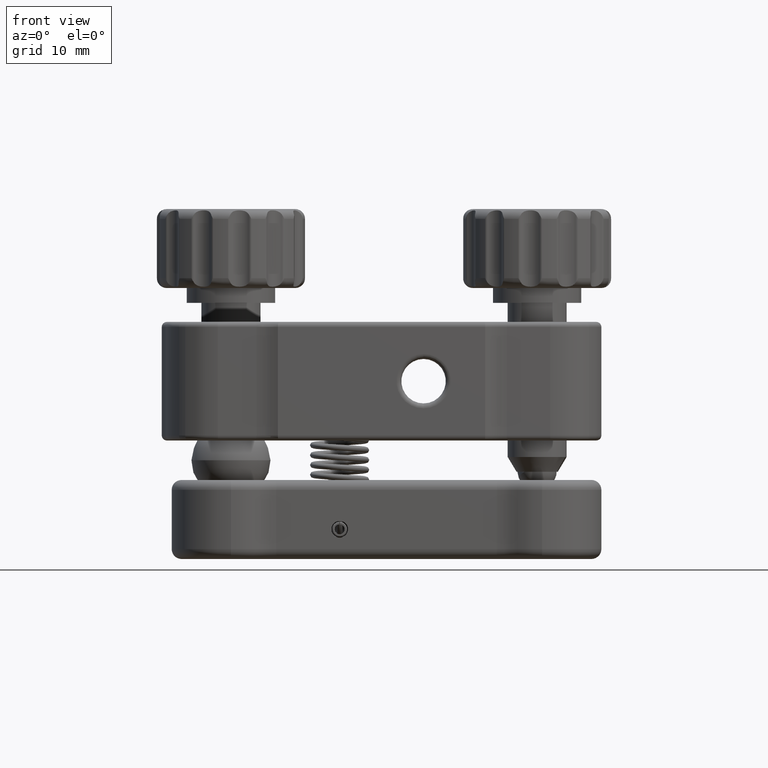
[diagram: clean part render]
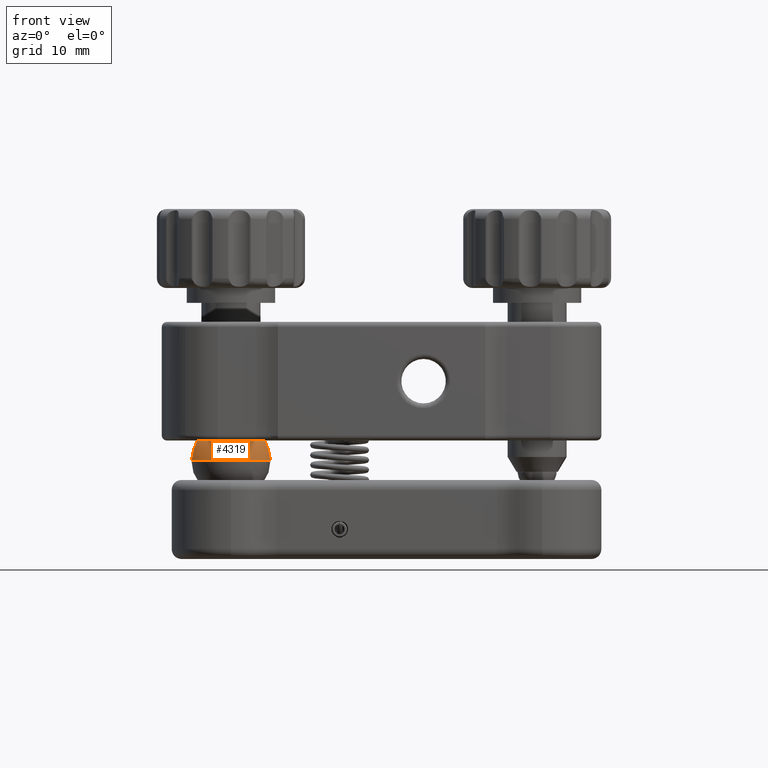
[diagram: same view with one face highlighted and labeled with its STEP entity id]
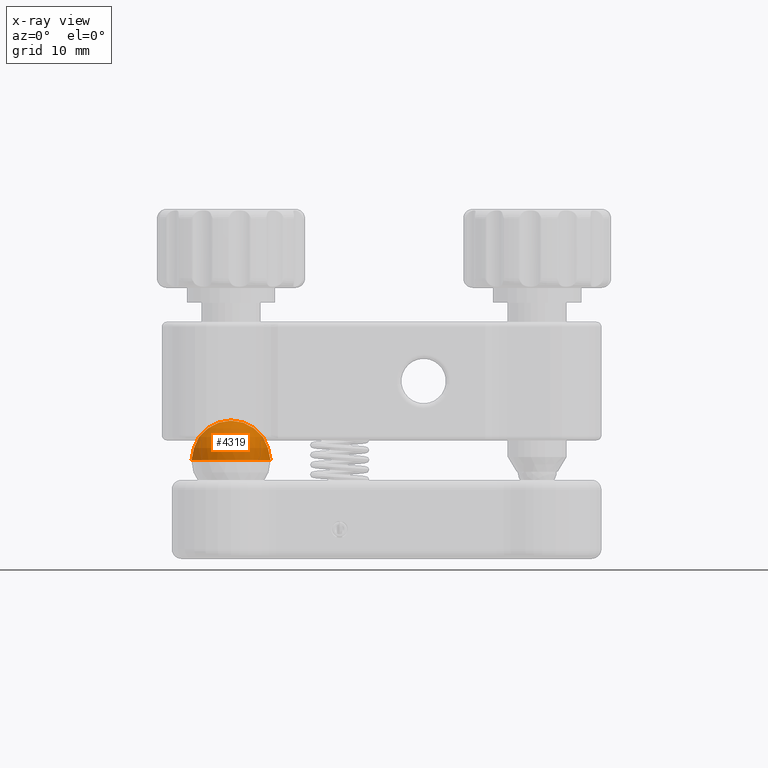
[diagram: x-ray of the same camera — body ghosted, the highlighted face saturated]
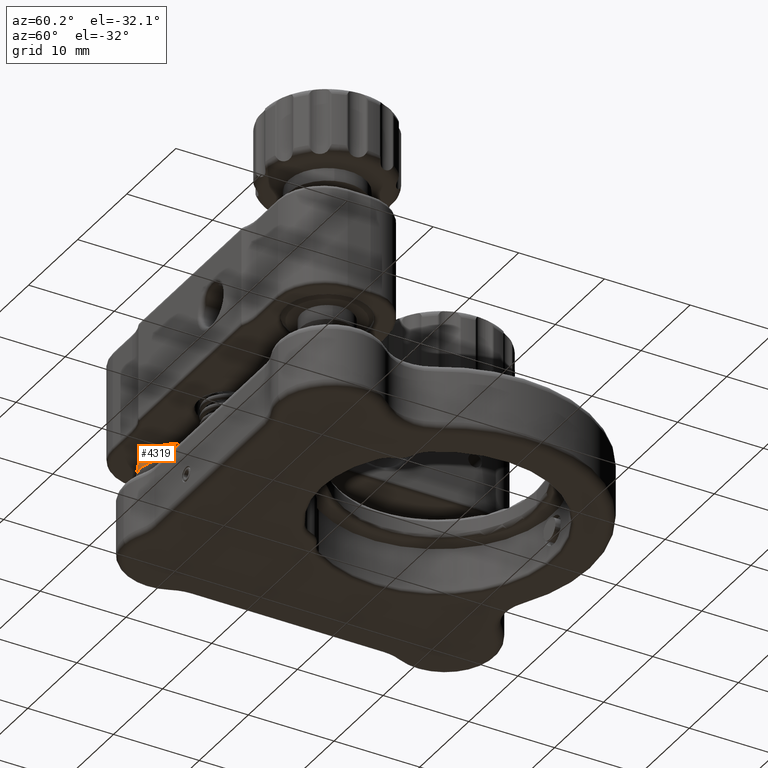
[diagram: same view with one face highlighted and labeled with its STEP entity id]
A machine part, front view. The second image highlights one B-rep face of the part: STEP entity #4319.
The next image is the same camera in x-ray: the body ghosted, the highlighted face saturated — about 0% of this face is hidden behind the body in this view.
A second angle (auxiliary view) of the same face is appended — the face is thin or edge-on in the first view.
In plain terms, the highlighted spherical surface has radius 4 mm.
Its self-contained STEP definition (entity closure, byte-faithful):
#1094 = FACE_OUTER_BOUND ( 'NONE', #3781, .T. ) ;
#2730 = DIRECTION ( 'NONE',  ( 2.831068712794149178E-15, 1.000000000000000000, 4.336808689942017736E-16 ) ) ;
#3121 = DIRECTION ( 'NONE',  ( 9.369561891591502420E-16, 4.336808689941991112E-16, -1.000000000000000000 ) ) ;
#3695 = AXIS2_PLACEMENT_3D ( 'NONE', #24815, #11482, #3983 ) ;
#3781 = EDGE_LOOP ( 'NONE', ( #16751, #5785 ) ) ;
#3983 = DIRECTION ( 'NONE',  ( -1.000000000000000000, 0.000000000000000000, -8.673617379884035472E-16 ) ) ;
#4319 = ADVANCED_FACE ( 'NONE', ( #1094 ), #6913, .T. ) ;
#5728 = VERTEX_POINT ( 'NONE', #23459 ) ;
#5785 = ORIENTED_EDGE ( 'NONE', *, *, #10056, .T. ) ;
#6239 = AXIS2_PLACEMENT_3D ( 'NONE', #6715, #16860, #12913 ) ;
#6715 = CARTESIAN_POINT ( 'NONE',  ( 0.000000000000000000, 0.000000000000000000, -8.000000000000000000 ) ) ;
#6913 = SPHERICAL_SURFACE ( 'NONE', #13469, 4.000000000000000000 ) ;
#10056 = EDGE_CURVE ( 'NONE', #5728, #19443, #21664, .T. ) ;
#11482 = DIRECTION ( 'NONE',  ( 9.369561891591498475E-16, 5.368781705626312696E-16, -1.000000000000000000 ) ) ;
#12348 = CARTESIAN_POINT ( 'NONE',  ( -4.000000000000000000, -1.107934549134712642E-14, -8.000000000000003553 ) ) ;
#12913 = DIRECTION ( 'NONE',  ( 1.000000000000000000, 0.000000000000000000, 8.673617379884035472E-16 ) ) ;
#13469 = AXIS2_PLACEMENT_3D ( 'NONE', #20133, #3121, #2730 ) ;
#16751 = ORIENTED_EDGE ( 'NONE', *, *, #19240, .F. ) ;
#16860 = DIRECTION ( 'NONE',  ( -9.369561891591502420E-16, -4.144134906478959242E-16, 1.000000000000000000 ) ) ;
#18716 = CIRCLE ( 'NONE', #3695, 4.000000000000000000 ) ;
#19240 = EDGE_CURVE ( 'NONE', #5728, #19443, #18716, .T. ) ;
#19443 = VERTEX_POINT ( 'NONE', #12348 ) ;
#20133 = CARTESIAN_POINT ( 'NONE',  ( 0.000000000000000000, 0.000000000000000000, -8.000000000000000000 ) ) ;
#21664 = CIRCLE ( 'NONE', #6239, 4.000000000000000000 ) ;
#23459 = CARTESIAN_POINT ( 'NONE',  ( 4.000000000000000000, 1.156920421100606701E-14, -7.999999999999996447 ) ) ;
#24815 = CARTESIAN_POINT ( 'NONE',  ( 0.000000000000000000, 0.000000000000000000, -8.000000000000000000 ) ) ;